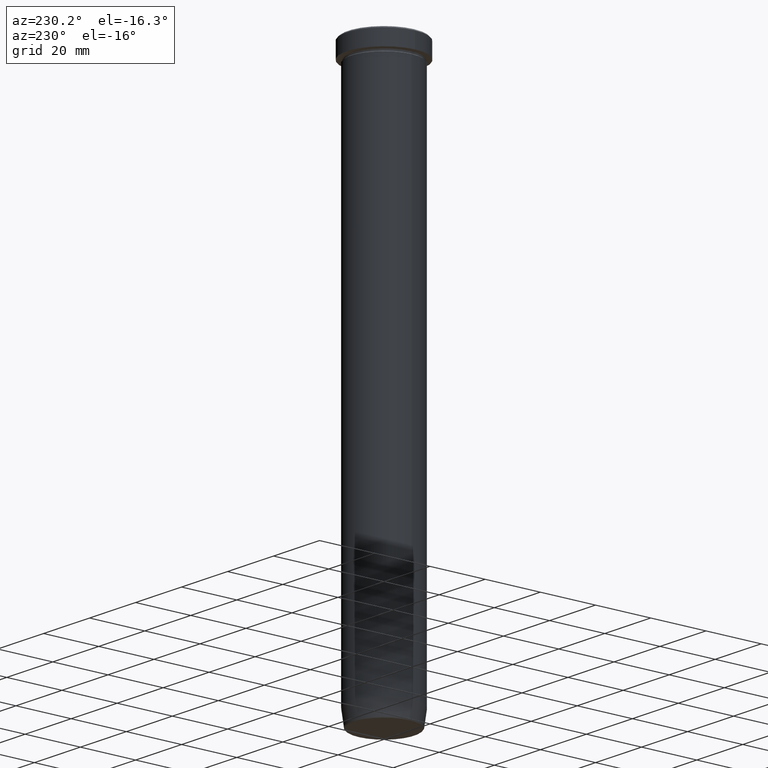
[diagram: clean part render]
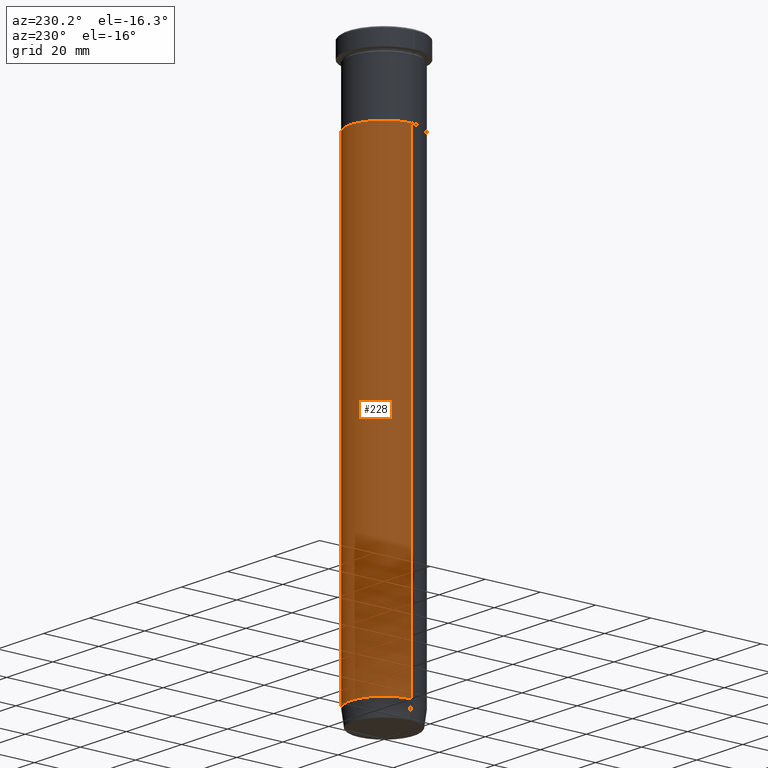
[diagram: same view with one face highlighted and labeled with its STEP entity id]
A machine part, auxiliary view. The second image highlights one B-rep face of the part: STEP entity #228.
In plain terms, the highlighted cylindrical surface (partial cylindrical patch) has radius 12 mm, axis along (-0, -0, 1).
Its self-contained STEP definition (entity closure, byte-faithful):
#31 = DIRECTION ( 'NONE',  ( 1.000000000000000000, 0.000000000000000000, 0.000000000000000000 ) ) ;
#37 = LINE ( 'NONE', #501, #413 ) ;
#84 = ORIENTED_EDGE ( 'NONE', *, *, #233, .T. ) ;
#98 = ORIENTED_EDGE ( 'NONE', *, *, #142, .F. ) ;
#142 = EDGE_CURVE ( 'NONE', #164, #301, #416, .T. ) ;
#147 = ORIENTED_EDGE ( 'NONE', *, *, #538, .T. ) ;
#162 = EDGE_CURVE ( 'NONE', #301, #179, #270, .T. ) ;
#164 = VERTEX_POINT ( 'NONE', #548 ) ;
#172 = DIRECTION ( 'NONE',  ( -0.000000000000000000, -0.000000000000000000, 1.000000000000000000 ) ) ;
#179 = VERTEX_POINT ( 'NONE', #358 ) ;
#208 = VERTEX_POINT ( 'NONE', #331 ) ;
#228 = ADVANCED_FACE ( 'NONE', ( #453 ), #272, .T. ) ;
#233 = EDGE_CURVE ( 'NONE', #208, #179, #37, .T. ) ;
#242 = CARTESIAN_POINT ( 'NONE',  ( 0.000000000000000000, 0.000000000000000000, -27.00000000000000000 ) ) ;
#270 = CIRCLE ( 'NONE', #345, 12.00000000000000000 ) ;
#272 = CYLINDRICAL_SURFACE ( 'NONE', #304, 12.00000000000000000 ) ;
#282 = CARTESIAN_POINT ( 'NONE',  ( 12.00000000000000000, 0.000000000000000000, 0.000000000000000000 ) ) ;
#287 = DIRECTION ( 'NONE',  ( -0.000000000000000000, -0.000000000000000000, 1.000000000000000000 ) ) ;
#301 = VERTEX_POINT ( 'NONE', #434 ) ;
#304 = AXIS2_PLACEMENT_3D ( 'NONE', #493, #412, #31 ) ;
#318 = AXIS2_PLACEMENT_3D ( 'NONE', #531, #172, #486 ) ;
#319 = DIRECTION ( 'NONE',  ( -0.000000000000000000, -0.000000000000000000, 1.000000000000000000 ) ) ;
#325 = VECTOR ( 'NONE', #287, 1000.000000000000000 ) ;
#331 = CARTESIAN_POINT ( 'NONE',  ( -12.00000000000000000, 1.469576158976823947E-15, -193.9999999999999716 ) ) ;
#345 = AXIS2_PLACEMENT_3D ( 'NONE', #242, #456, #551 ) ;
#358 = CARTESIAN_POINT ( 'NONE',  ( -12.00000000000000000, 1.469576158976823947E-15, -27.00000000000000000 ) ) ;
#412 = DIRECTION ( 'NONE',  ( -0.000000000000000000, -0.000000000000000000, 1.000000000000000000 ) ) ;
#413 = VECTOR ( 'NONE', #319, 1000.000000000000000 ) ;
#416 = LINE ( 'NONE', #282, #325 ) ;
#434 = CARTESIAN_POINT ( 'NONE',  ( 12.00000000000000000, 0.000000000000000000, -27.00000000000000000 ) ) ;
#453 = FACE_OUTER_BOUND ( 'NONE', #511, .T. ) ;
#456 = DIRECTION ( 'NONE',  ( -0.000000000000000000, -0.000000000000000000, 1.000000000000000000 ) ) ;
#486 = DIRECTION ( 'NONE',  ( 1.000000000000000000, 0.000000000000000000, 0.000000000000000000 ) ) ;
#493 = CARTESIAN_POINT ( 'NONE',  ( 0.000000000000000000, 0.000000000000000000, 0.000000000000000000 ) ) ;
#501 = CARTESIAN_POINT ( 'NONE',  ( -12.00000000000000000, 1.469576158976823947E-15, 0.000000000000000000 ) ) ;
#505 = ORIENTED_EDGE ( 'NONE', *, *, #162, .F. ) ;
#511 = EDGE_LOOP ( 'NONE', ( #147, #84, #505, #98 ) ) ;
#531 = CARTESIAN_POINT ( 'NONE',  ( 0.000000000000000000, 0.000000000000000000, -193.9999999999999716 ) ) ;
#538 = EDGE_CURVE ( 'NONE', #164, #208, #583, .T. ) ;
#548 = CARTESIAN_POINT ( 'NONE',  ( 12.00000000000000000, 0.000000000000000000, -193.9999999999999716 ) ) ;
#551 = DIRECTION ( 'NONE',  ( 1.000000000000000000, 0.000000000000000000, 0.000000000000000000 ) ) ;
#583 = CIRCLE ( 'NONE', #318, 12.00000000000000000 ) ;